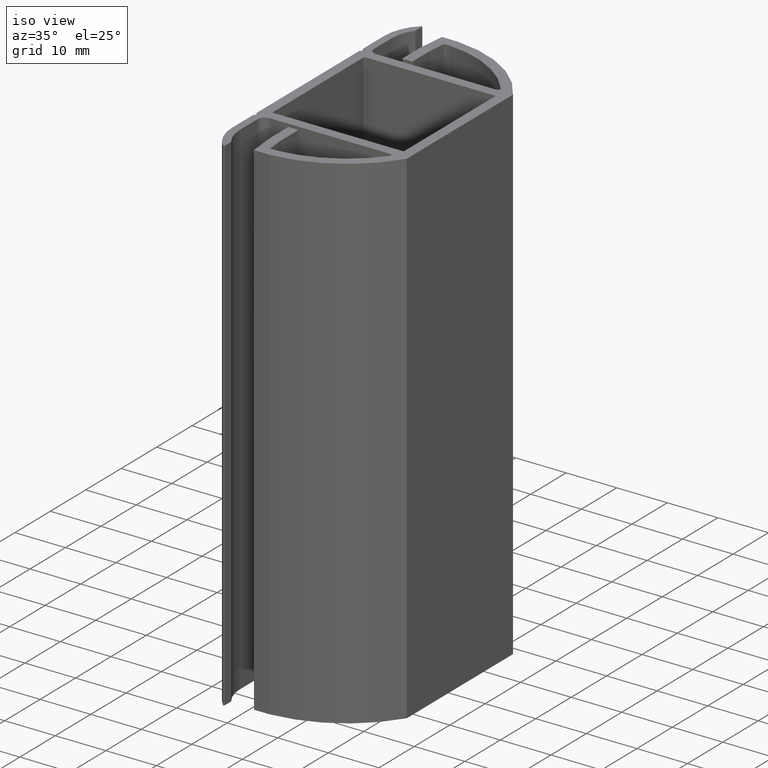
[diagram: clean part render]
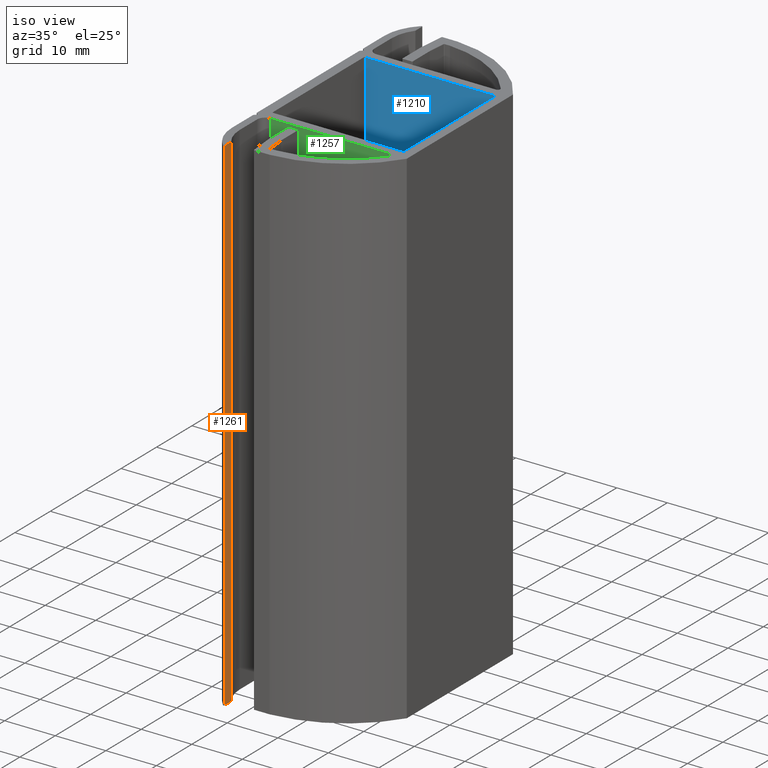
[diagram: same view with three faces highlighted in distinct colors, each labeled with its STEP entity id]
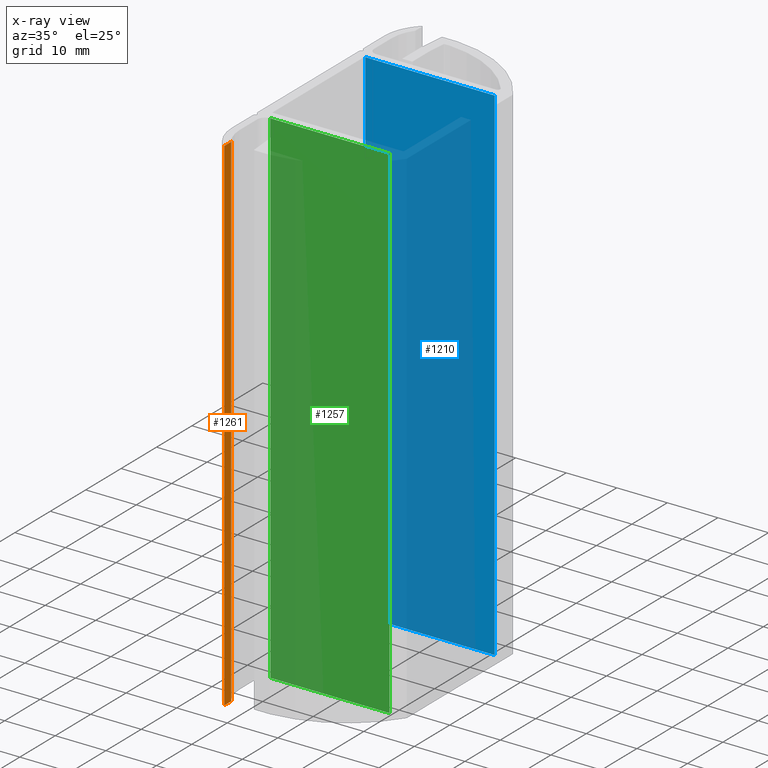
[diagram: x-ray of the same camera — body ghosted, the three highlighted faces saturated]
A machine part, iso view with three faces highlighted in distinct colors.
The next image is the same camera in x-ray (body ghosted, the three faces saturated) — at least one of them is partly hidden behind the body in this view.
Their STEP definitions:

[orange] entity #1261 — the highlighted planar face has unit normal (1, 0, 0).
#46=PLANE($,#1381);
#106=FACE_OUTER_BOUND($,#170,.T.);
#170=EDGE_LOOP($,(#1081,#1082,#1083,#1084));
#278=LINE($,#1910,#408);
#352=LINE($,#2105,#482);
#353=LINE($,#2108,#483);
#354=LINE($,#2109,#484);
#408=VECTOR($,#1513,1.90000000000069);
#482=VECTOR($,#1725,100.);
#483=VECTOR($,#1728,1.90000000000069);
#484=VECTOR($,#1729,100.);
#559=VERTEX_POINT($,#1907);
#560=VERTEX_POINT($,#1909);
#612=VERTEX_POINT($,#2103);
#613=VERTEX_POINT($,#2107);
#691=EDGE_CURVE($,#559,#560,#278,.T.);
#789=EDGE_CURVE($,#559,#612,#352,.T.);
#790=EDGE_CURVE($,#613,#612,#353,.T.);
#791=EDGE_CURVE($,#560,#613,#354,.T.);
#1081=ORIENTED_EDGE($,*,*,#789,.T.);
#1082=ORIENTED_EDGE($,*,*,#790,.F.);
#1083=ORIENTED_EDGE($,*,*,#791,.F.);
#1084=ORIENTED_EDGE($,*,*,#691,.F.);
#1261=ADVANCED_FACE($,(#106),#46,.T.);
#1381=AXIS2_PLACEMENT_3D($,#2106,#1726,#1727);
#1513=DIRECTION($,(1.16865581539448E-015,-1.,0.));
#1725=DIRECTION($,(0.,0.,1.));
#1726=DIRECTION('center_axis',(1.,1.16865581539448E-015,0.));
#1727=DIRECTION('ref_axis',(-1.24344978758018E-015,1.,0.));
#1728=DIRECTION($,(-1.16865581539448E-015,1.,0.));
#1729=DIRECTION($,(0.,0.,1.));
#1907=CARTESIAN_POINT('',(-11.9999999999994,-25.9999999999995,-50.));
#1909=CARTESIAN_POINT('',(-11.9999999999994,-27.9000000000002,-50.));
#1910=CARTESIAN_POINT($,(-11.9999999999994,-27.9000000000002,-50.));
#2103=CARTESIAN_POINT('',(-11.9999999999994,-25.9999999999995,50.));
#2105=CARTESIAN_POINT($,(-11.9999999999994,-25.9999999999995,0.));
#2106=CARTESIAN_POINT('Origin',(-11.9999999999994,-27.9000000000002,0.));
#2107=CARTESIAN_POINT('',(-11.9999999999994,-27.9000000000002,50.));
#2108=CARTESIAN_POINT($,(-11.9999999999994,-27.9000000000002,50.));
#2109=CARTESIAN_POINT($,(-11.9999999999994,-27.9000000000002,0.));

[blue] entity #1210 — the highlighted planar face has unit normal (0, 1, 0).
#18=PLANE($,#1281);
#56=FACE_OUTER_BOUND($,#118,.T.);
#118=EDGE_LOOP($,(#819,#820,#821,#822));
#242=LINE($,#1786,#372);
#243=LINE($,#1790,#373);
#244=LINE($,#1792,#374);
#245=LINE($,#1793,#375);
#372=VECTOR($,#1413,100.);
#373=VECTOR($,#1418,25.6000000000007);
#374=VECTOR($,#1419,100.);
#375=VECTOR($,#1420,25.6000000000007);
#503=VERTEX_POINT($,#1783);
#504=VERTEX_POINT($,#1785);
#505=VERTEX_POINT($,#1789);
#506=VERTEX_POINT($,#1791);
#629=EDGE_CURVE($,#503,#504,#242,.T.);
#631=EDGE_CURVE($,#505,#503,#243,.T.);
#632=EDGE_CURVE($,#505,#506,#244,.T.);
#633=EDGE_CURVE($,#504,#506,#245,.T.);
#819=ORIENTED_EDGE($,*,*,#629,.F.);
#820=ORIENTED_EDGE($,*,*,#631,.F.);
#821=ORIENTED_EDGE($,*,*,#632,.T.);
#822=ORIENTED_EDGE($,*,*,#633,.F.);
#1210=ADVANCED_FACE($,(#56),#18,.F.);
#1281=AXIS2_PLACEMENT_3D($,#1788,#1416,#1417);
#1413=DIRECTION($,(0.,0.,1.));
#1416=DIRECTION('center_axis',(6.93889390390705E-016,1.,0.));
#1417=DIRECTION('ref_axis',(-1.,7.105427357601E-016,0.));
#1418=DIRECTION($,(-1.,6.93889390390705E-016,0.));
#1419=DIRECTION($,(0.,0.,1.));
#1420=DIRECTION($,(1.,-6.93889390390705E-016,0.));
#1783=CARTESIAN_POINT('',(-12.8000000000003,13.,-50.));
#1785=CARTESIAN_POINT('',(-12.8000000000003,13.,50.));
#1786=CARTESIAN_POINT($,(-12.8000000000003,13.,0.));
#1788=CARTESIAN_POINT('Origin',(12.8000000000003,13.,0.));
#1789=CARTESIAN_POINT('',(12.8000000000003,13.,-50.));
#1790=CARTESIAN_POINT($,(5.21275374504686,13.,-50.));
#1791=CARTESIAN_POINT('',(12.8000000000003,13.,50.));
#1792=CARTESIAN_POINT($,(12.8000000000003,13.,0.));
#1793=CARTESIAN_POINT($,(5.21275374504686,13.,50.));

[green] entity #1257 — the highlighted planar face has unit normal (-0, -1, 0).
#44=PLANE($,#1375);
#102=FACE_OUTER_BOUND($,#166,.T.);
#166=EDGE_LOOP($,(#1065,#1066,#1067,#1068));
#276=LINE($,#1902,#406);
#346=LINE($,#2089,#476);
#347=LINE($,#2092,#477);
#348=LINE($,#2093,#478);
#406=VECTOR($,#1507,23.624745659691);
#476=VECTOR($,#1707,100.);
#477=VECTOR($,#1710,23.624745659691);
#478=VECTOR($,#1711,100.);
#555=VERTEX_POINT($,#1899);
#556=VERTEX_POINT($,#1901);
#608=VERTEX_POINT($,#2087);
#609=VERTEX_POINT($,#2091);
#687=EDGE_CURVE($,#555,#556,#276,.T.);
#781=EDGE_CURVE($,#555,#608,#346,.T.);
#782=EDGE_CURVE($,#609,#608,#347,.T.);
#783=EDGE_CURVE($,#556,#609,#348,.T.);
#1065=ORIENTED_EDGE($,*,*,#781,.T.);
#1066=ORIENTED_EDGE($,*,*,#782,.F.);
#1067=ORIENTED_EDGE($,*,*,#783,.F.);
#1068=ORIENTED_EDGE($,*,*,#687,.F.);
#1257=ADVANCED_FACE($,(#102),#44,.T.);
#1375=AXIS2_PLACEMENT_3D($,#2090,#1708,#1709);
#1507=DIRECTION($,(-1.,5.63928877263355E-016,0.));
#1707=DIRECTION($,(0.,0.,1.));
#1708=DIRECTION('center_axis',(-5.63928877263355E-016,-1.,0.));
#1709=DIRECTION('ref_axis',(1.,-5.32907051820075E-016,0.));
#1710=DIRECTION($,(1.,-5.63928877263355E-016,0.));
#1711=DIRECTION($,(0.,0.,1.));
#1899=CARTESIAN_POINT('',(11.6247456596921,-15.0000000000001,-50.));
#1901=CARTESIAN_POINT('',(-11.999999999999,-15.0000000000001,-50.));
#1902=CARTESIAN_POINT($,(-11.999999999999,-15.0000000000001,-50.));
#2087=CARTESIAN_POINT('',(11.6247456596921,-15.0000000000001,50.));
#2089=CARTESIAN_POINT($,(11.6247456596921,-15.0000000000001,0.));
#2090=CARTESIAN_POINT('Origin',(-11.999999999999,-15.0000000000001,0.));
#2091=CARTESIAN_POINT('',(-11.999999999999,-15.0000000000001,50.));
#2092=CARTESIAN_POINT($,(-11.999999999999,-15.0000000000001,50.));
#2093=CARTESIAN_POINT($,(-11.999999999999,-15.0000000000001,0.));